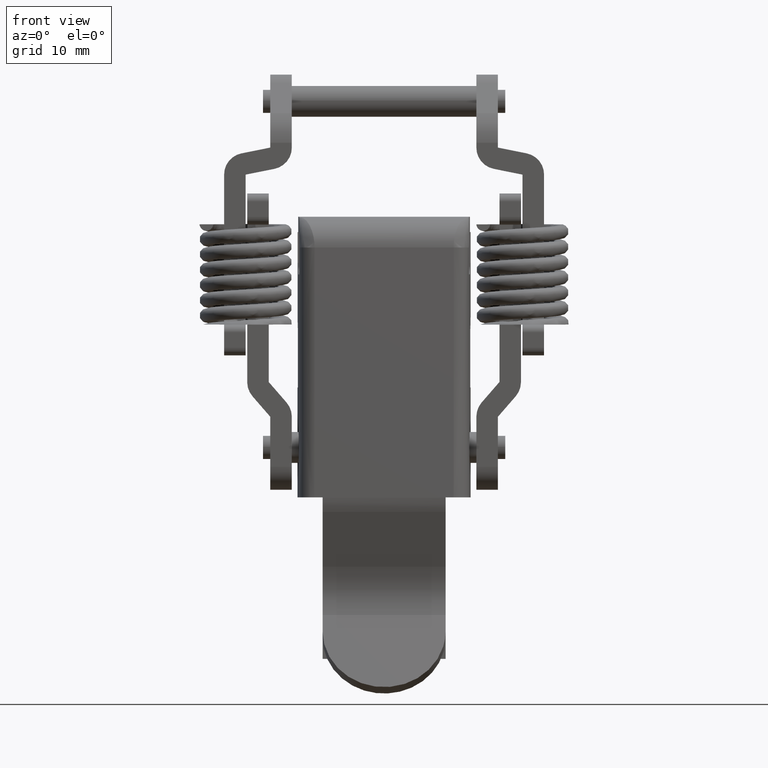
[diagram: clean part render]
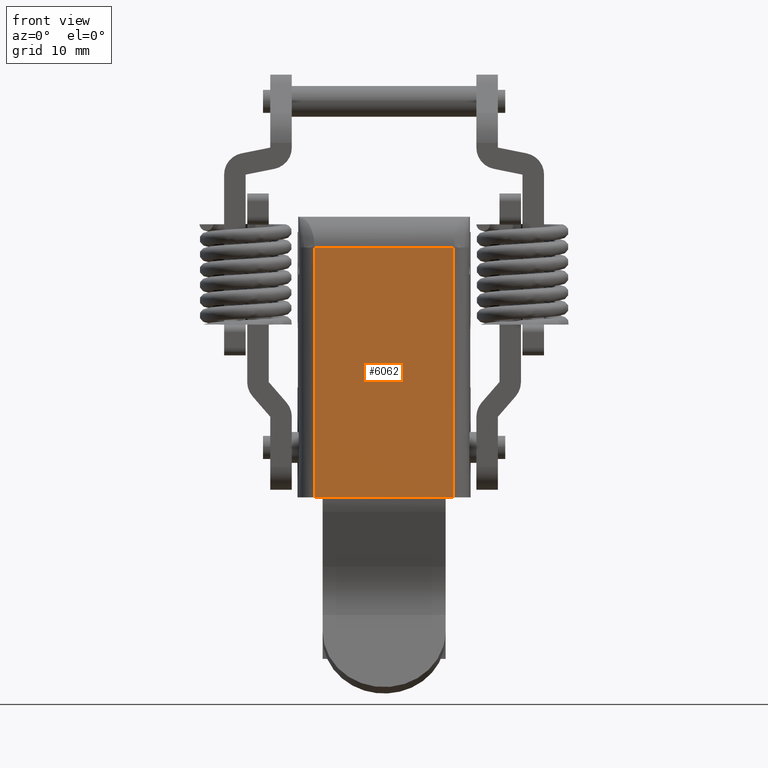
[diagram: same view with one face highlighted and labeled with its STEP entity id]
A machine part, front view. The second image highlights one B-rep face of the part: STEP entity #6062.
In plain terms, the highlighted face is a freeform B-spline surface patch.
Its self-contained STEP definition (entity closure, byte-faithful):
#4365=CARTESIAN_POINT('',(-10.699999999999999,9.034192308661870,-19.0));
#4366=VERTEX_POINT('',#4365);
#4443=CARTESIAN_POINT('',(-10.699999999999999,9.034192308661870,-51.500000000000000));
#4444=VERTEX_POINT('',#4443);
#4460=CARTESIAN_POINT('',(-10.699999999999999,9.034192308661881,-19.0));
#4461=CARTESIAN_POINT('',(-10.699999999999999,9.034192308661881,-29.833333333333350));
#4462=CARTESIAN_POINT('',(-10.699999999999999,9.034192308661881,-40.666666666666650));
#4463=CARTESIAN_POINT('',(-10.699999999999999,9.034192308661881,-51.500000000000000));
#4464=B_SPLINE_CURVE_WITH_KNOTS('',3,(#4460,#4461,#4462,#4463),.UNSPECIFIED.,.F.,.U.,(4,4),(0.666666666666667,1.000000000000000),.UNSPECIFIED.);
#4465=EDGE_CURVE('',#4366,#4444,#4464,.T.);
#4520=CARTESIAN_POINT('',(-10.699999999999999,-9.034191308662120,-19.0));
#4521=VERTEX_POINT('',#4520);
#4584=CARTESIAN_POINT('',(-10.699999999999999,-9.034191308662120,-51.500000000000000));
#4585=VERTEX_POINT('',#4584);
#4607=CARTESIAN_POINT('',(-10.699999999999999,-9.034191308662100,-51.500000000000000));
#4608=CARTESIAN_POINT('',(-10.699999999999999,-9.034191308662100,-40.666666666666650));
#4609=CARTESIAN_POINT('',(-10.699999999999999,-9.034191308662100,-29.833333333333350));
#4610=CARTESIAN_POINT('',(-10.699999999999999,-9.034191308662100,-19.0));
#4611=B_SPLINE_CURVE_WITH_KNOTS('',3,(#4607,#4608,#4609,#4610),.UNSPECIFIED.,.F.,.U.,(4,4),(0.0,0.333333333333333),.UNSPECIFIED.);
#4612=EDGE_CURVE('',#4585,#4521,#4611,.T.);
#4766=CARTESIAN_POINT('',(-10.699999999999999,8.0,-51.532559191222099));
#4767=VERTEX_POINT('',#4766);
#4788=CARTESIAN_POINT('',(-10.699999999999999,-8.0,-51.532559191222099));
#4789=VERTEX_POINT('',#4788);
#4803=CARTESIAN_POINT('',(-10.699999999999999,8.0,-51.532559191222099));
#4804=CARTESIAN_POINT('',(-10.699999999999999,-8.0,-51.532559191222099));
#4805=QUASI_UNIFORM_CURVE('',1,(#4803,#4804),.UNSPECIFIED.,.F.,.U.);
#4806=EDGE_CURVE('',#4767,#4789,#4805,.T.);
#4887=CARTESIAN_POINT('',(-10.699999999999999,-7.999999999999900,-51.500000000000000));
#4888=VERTEX_POINT('',#4887);
#4889=CARTESIAN_POINT('',(-10.699999999999999,-7.999999999999900,-51.500000000000000));
#4890=CARTESIAN_POINT('',(-10.699999999999999,-8.0,-51.532559191222099));
#4891=QUASI_UNIFORM_CURVE('',1,(#4889,#4890),.UNSPECIFIED.,.F.,.U.);
#4892=EDGE_CURVE('',#4888,#4789,#4891,.T.);
#4979=CARTESIAN_POINT('',(-10.699999999999999,8.0,-51.500000000000000));
#4980=VERTEX_POINT('',#4979);
#4981=CARTESIAN_POINT('',(-10.699999999999999,8.0,-51.500000000000000));
#4982=CARTESIAN_POINT('',(-10.699999999999999,8.0,-51.532559191222099));
#4983=QUASI_UNIFORM_CURVE('',1,(#4981,#4982),.UNSPECIFIED.,.F.,.U.);
#4984=EDGE_CURVE('',#4980,#4767,#4983,.T.);
#6035=CARTESIAN_POINT('',(-10.699999999999999,-9.936706801161403,-53.157559848984462));
#6036=CARTESIAN_POINT('',(-10.699999999999999,-9.936706801161403,-17.374997887918919));
#6037=CARTESIAN_POINT('',(-10.699999999999999,9.936707154985411,-53.157559848984462));
#6038=CARTESIAN_POINT('',(-10.699999999999999,9.936707154985411,-17.374997887918919));
#6039=B_SPLINE_SURFACE_WITH_KNOTS('',1,1,((#6035,#6037),(#6036,#6038)),.UNSPECIFIED.,.F.,.F.,.U.,(2,2),(2,2),(0.0,35.782561961065539),(0.0,19.873413956146809),.UNSPECIFIED.);
#6040=CARTESIAN_POINT('',(-10.699999999999999,9.034192308661870,-19.0));
#6041=CARTESIAN_POINT('',(-10.699999999999999,-9.034191308662120,-19.0));
#6042=QUASI_UNIFORM_CURVE('',1,(#6040,#6041),.UNSPECIFIED.,.F.,.U.);
#6043=EDGE_CURVE('',#4366,#4521,#6042,.T.);
#6044=ORIENTED_EDGE('',*,*,#6043,.F.);
#6045=ORIENTED_EDGE('',*,*,#4465,.T.);
#6046=CARTESIAN_POINT('',(-10.699999999999999,9.034192308661870,-51.500000000000000));
#6047=CARTESIAN_POINT('',(-10.699999999999999,8.0,-51.500000000000000));
#6048=QUASI_UNIFORM_CURVE('',1,(#6046,#6047),.UNSPECIFIED.,.F.,.U.);
#6049=EDGE_CURVE('',#4444,#4980,#6048,.T.);
#6050=ORIENTED_EDGE('',*,*,#6049,.T.);
#6051=ORIENTED_EDGE('',*,*,#4984,.T.);
#6052=ORIENTED_EDGE('',*,*,#4806,.T.);
#6053=ORIENTED_EDGE('',*,*,#4892,.F.);
#6054=CARTESIAN_POINT('',(-10.699999999999999,-7.999999999999900,-51.500000000000000));
#6055=CARTESIAN_POINT('',(-10.699999999999999,-9.034191308662120,-51.500000000000000));
#6056=QUASI_UNIFORM_CURVE('',1,(#6054,#6055),.UNSPECIFIED.,.F.,.U.);
#6057=EDGE_CURVE('',#4888,#4585,#6056,.T.);
#6058=ORIENTED_EDGE('',*,*,#6057,.T.);
#6059=ORIENTED_EDGE('',*,*,#4612,.T.);
#6060=EDGE_LOOP('',(#6044,#6045,#6050,#6051,#6052,#6053,#6058,#6059));
#6061=FACE_OUTER_BOUND('',#6060,.T.);
#6062=ADVANCED_FACE('',(#6061),#6039,.T.);